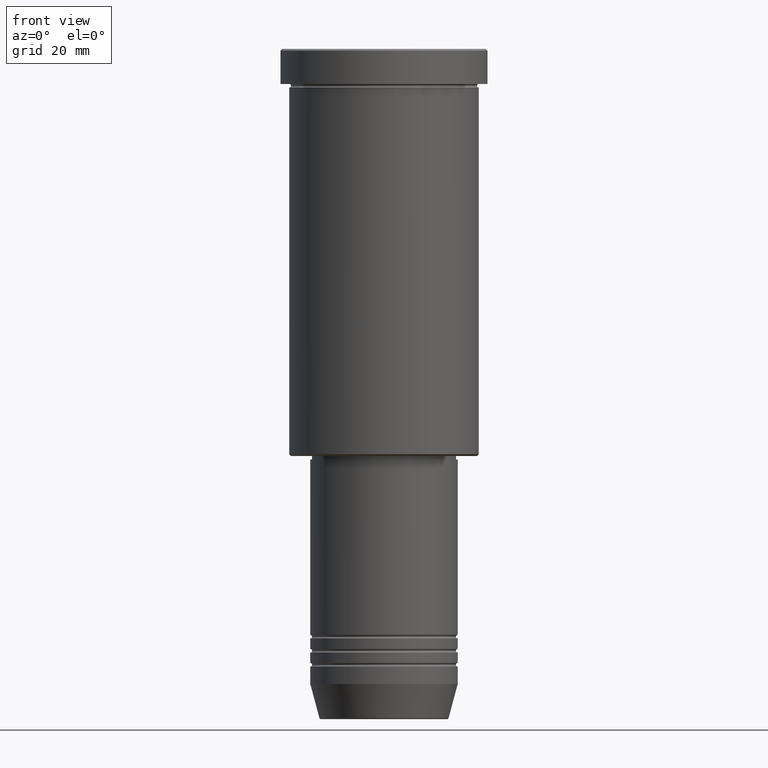
[diagram: clean part render]
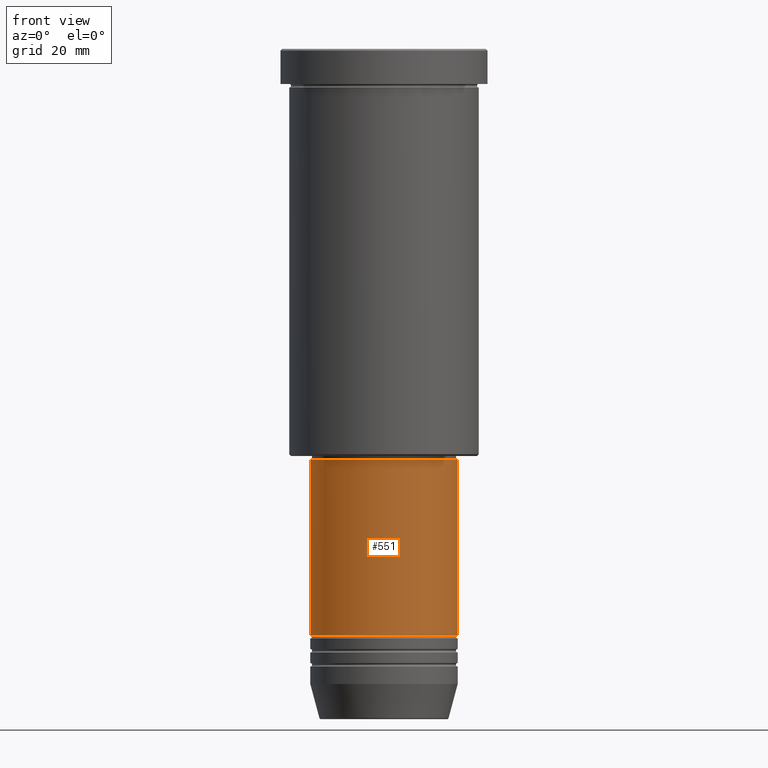
[diagram: same view with one face highlighted and labeled with its STEP entity id]
A machine part, front view. The second image highlights one B-rep face of the part: STEP entity #551.
In plain terms, the highlighted cylindrical surface (partial cylindrical patch) has radius 21 mm, axis along (-0, -0, 1).
Its self-contained STEP definition (entity closure, byte-faithful):
#32 = CIRCLE ( 'NONE', #1043, 20.99999999999999645 ) ;
#38 = ORIENTED_EDGE ( 'NONE', *, *, #1164, .T. ) ;
#171 = ORIENTED_EDGE ( 'NONE', *, *, #780, .F. ) ;
#275 = AXIS2_PLACEMENT_3D ( 'NONE', #431, #1155, #701 ) ;
#278 = CARTESIAN_POINT ( 'NONE',  ( 20.99999999999999645, 0.000000000000000000, 0.000000000000000000 ) ) ;
#283 = CARTESIAN_POINT ( 'NONE',  ( 20.99999999999999645, 0.000000000000000000, -117.0000000000000426 ) ) ;
#298 = CARTESIAN_POINT ( 'NONE',  ( -21.00000000000000000, 2.571758278209441661E-15, -166.9999999999998863 ) ) ;
#309 = DIRECTION ( 'NONE',  ( 1.000000000000000000, 0.000000000000000000, 0.000000000000000000 ) ) ;
#388 = DIRECTION ( 'NONE',  ( -0.000000000000000000, -0.000000000000000000, 1.000000000000000000 ) ) ;
#431 = CARTESIAN_POINT ( 'NONE',  ( 0.000000000000000000, 0.000000000000000000, 0.000000000000000000 ) ) ;
#465 = DIRECTION ( 'NONE',  ( 1.000000000000000000, 0.000000000000000000, 0.000000000000000000 ) ) ;
#503 = ORIENTED_EDGE ( 'NONE', *, *, #822, .T. ) ;
#538 = EDGE_LOOP ( 'NONE', ( #171, #38, #503, #792 ) ) ;
#551 = ADVANCED_FACE ( 'NONE', ( #617 ), #1063, .T. ) ;
#569 = VERTEX_POINT ( 'NONE', #893 ) ;
#589 = DIRECTION ( 'NONE',  ( -0.000000000000000000, -0.000000000000000000, 1.000000000000000000 ) ) ;
#617 = FACE_OUTER_BOUND ( 'NONE', #538, .T. ) ;
#699 = VECTOR ( 'NONE', #1010, 1000.000000000000000 ) ;
#701 = DIRECTION ( 'NONE',  ( 1.000000000000000000, 0.000000000000000000, 0.000000000000000000 ) ) ;
#766 = VERTEX_POINT ( 'NONE', #298 ) ;
#780 = EDGE_CURVE ( 'NONE', #766, #569, #1036, .T. ) ;
#792 = ORIENTED_EDGE ( 'NONE', *, *, #1068, .F. ) ;
#822 = EDGE_CURVE ( 'NONE', #1169, #1029, #1093, .T. ) ;
#893 = CARTESIAN_POINT ( 'NONE',  ( -20.99999999999999645, 2.571758278209441267E-15, -117.0000000000000426 ) ) ;
#906 = CIRCLE ( 'NONE', #994, 21.00000000000000000 ) ;
#911 = CARTESIAN_POINT ( 'NONE',  ( 0.000000000000000000, 0.000000000000000000, -117.0000000000000426 ) ) ;
#917 = DIRECTION ( 'NONE',  ( -0.000000000000000000, -0.000000000000000000, 1.000000000000000000 ) ) ;
#994 = AXIS2_PLACEMENT_3D ( 'NONE', #1105, #388, #309 ) ;
#1010 = DIRECTION ( 'NONE',  ( -0.000000000000000000, -0.000000000000000000, 1.000000000000000000 ) ) ;
#1029 = VERTEX_POINT ( 'NONE', #283 ) ;
#1036 = LINE ( 'NONE', #1046, #1153 ) ;
#1043 = AXIS2_PLACEMENT_3D ( 'NONE', #911, #917, #465 ) ;
#1046 = CARTESIAN_POINT ( 'NONE',  ( -20.99999999999999645, 2.571758278209441267E-15, 0.000000000000000000 ) ) ;
#1063 = CYLINDRICAL_SURFACE ( 'NONE', #275, 20.99999999999999645 ) ;
#1068 = EDGE_CURVE ( 'NONE', #569, #1029, #32, .T. ) ;
#1093 = LINE ( 'NONE', #278, #699 ) ;
#1105 = CARTESIAN_POINT ( 'NONE',  ( 0.000000000000000000, 0.000000000000000000, -166.9999999999998863 ) ) ;
#1119 = CARTESIAN_POINT ( 'NONE',  ( 21.00000000000000000, 0.000000000000000000, -166.9999999999998863 ) ) ;
#1153 = VECTOR ( 'NONE', #589, 1000.000000000000000 ) ;
#1155 = DIRECTION ( 'NONE',  ( -0.000000000000000000, -0.000000000000000000, 1.000000000000000000 ) ) ;
#1164 = EDGE_CURVE ( 'NONE', #766, #1169, #906, .T. ) ;
#1169 = VERTEX_POINT ( 'NONE', #1119 ) ;